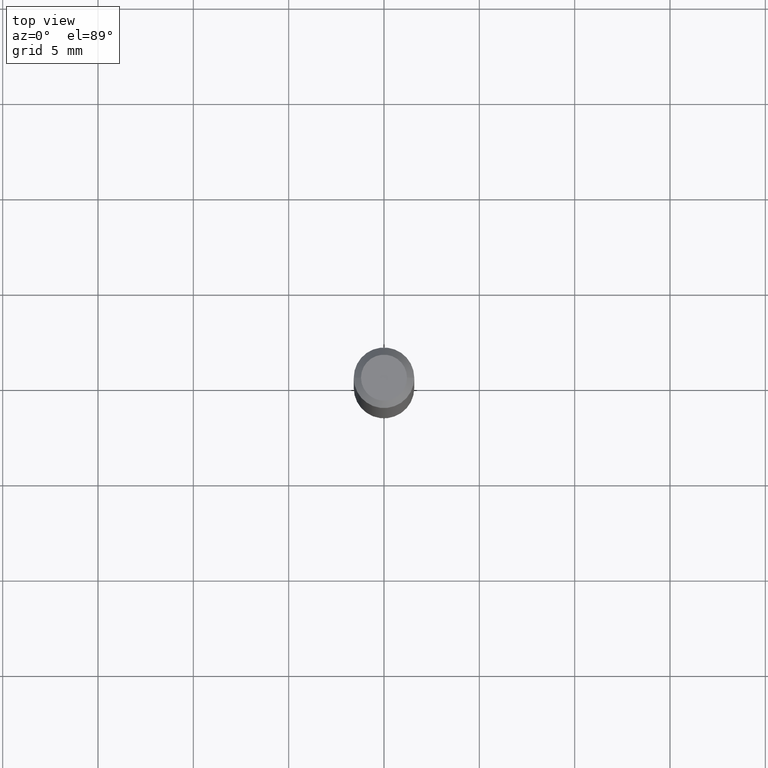
[diagram: clean part render]
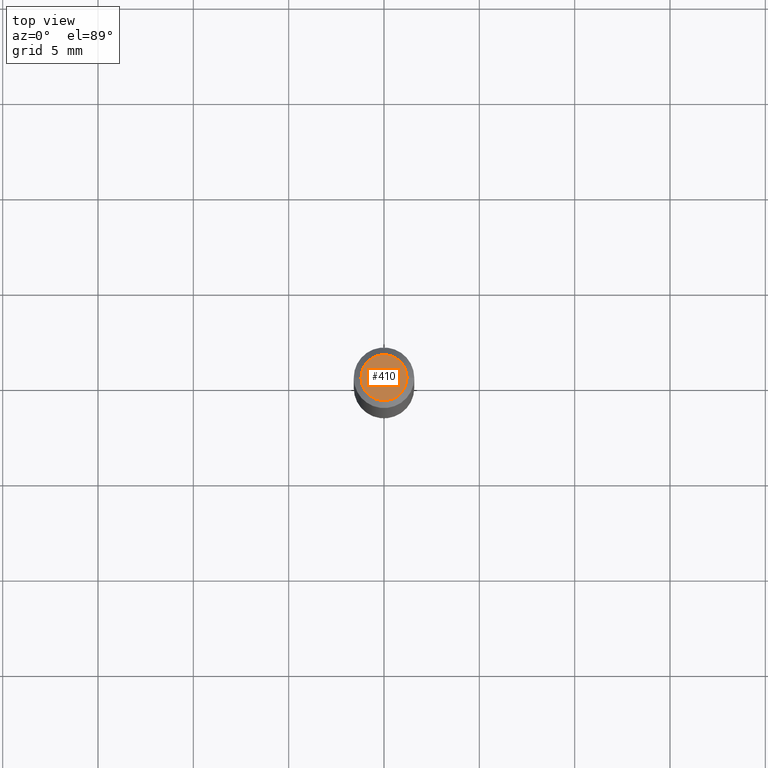
[diagram: same view with one face highlighted and labeled with its STEP entity id]
A machine part, top view. The second image highlights one B-rep face of the part: STEP entity #410.
In plain terms, the highlighted planar face has unit normal (0, -0, -1).
Its self-contained STEP definition (entity closure, byte-faithful):
#30 = CARTESIAN_POINT ( 'NONE',  ( -7.156224791579416592E-45, 1.021719240628687565E-30, 2.926320210456058586E-16 ) ) ;
#59 = EDGE_CURVE ( 'NONE', #232, #93, #186, .T. ) ;
#60 = CIRCLE ( 'NONE', #203, 0.04749999999999999362 ) ;
#69 = CARTESIAN_POINT ( 'NONE',  ( 0.04749999999999999362, -4.035134999187572707E-16, 2.926320210456084224E-16 ) ) ;
#93 = VERTEX_POINT ( 'NONE', #286 ) ;
#99 = ORIENTED_EDGE ( 'NONE', *, *, #206, .T. ) ;
#165 = AXIS2_PLACEMENT_3D ( 'NONE', #270, #216, #450 ) ;
#186 = CIRCLE ( 'NONE', #240, 0.04749999999999999362 ) ;
#203 = AXIS2_PLACEMENT_3D ( 'NONE', #30, #432, #291 ) ;
#206 = EDGE_CURVE ( 'NONE', #93, #232, #60, .T. ) ;
#216 = DIRECTION ( 'NONE',  ( 2.438088387897960049E-29, -3.491481338843145188E-15, -1.000000000000000000 ) ) ;
#232 = VERTEX_POINT ( 'NONE', #69 ) ;
#240 = AXIS2_PLACEMENT_3D ( 'NONE', #281, #366, #363 ) ;
#266 = PLANE ( 'NONE',  #165 ) ;
#270 = CARTESIAN_POINT ( 'NONE',  ( 3.316907271900976096E-16, 0.04749999999999999362, -1.952935307224647024E-17 ) ) ;
#281 = CARTESIAN_POINT ( 'NONE',  ( -7.156224791579416592E-45, 1.021719240628687565E-30, 2.926320210456058586E-16 ) ) ;
#286 = CARTESIAN_POINT ( 'NONE',  ( -0.04749999999999999362, 3.578768372314215929E-16, 2.926320210456034427E-16 ) ) ;
#291 = DIRECTION ( 'NONE',  ( 1.000000000000000000, -6.982962677686267499E-15, 4.852736867747366768E-29 ) ) ;
#330 = FACE_OUTER_BOUND ( 'NONE', #428, .T. ) ;
#346 = ORIENTED_EDGE ( 'NONE', *, *, #59, .T. ) ;
#363 = DIRECTION ( 'NONE',  ( 1.000000000000000000, -6.982962677686267499E-15, 4.852736867747366768E-29 ) ) ;
#366 = DIRECTION ( 'NONE',  ( -2.445468806185136597E-29, 3.491481338843145583E-15, 1.000000000000000000 ) ) ;
#410 = ADVANCED_FACE ( 'NONE', ( #330 ), #266, .F. ) ;
#428 = EDGE_LOOP ( 'NONE', ( #99, #346 ) ) ;
#432 = DIRECTION ( 'NONE',  ( -2.445468806185136597E-29, 3.491481338843145583E-15, 1.000000000000000000 ) ) ;
#450 = DIRECTION ( 'NONE',  ( -1.000000000000000000, 6.982962677686265922E-15, -4.876176775795935793E-29 ) ) ;